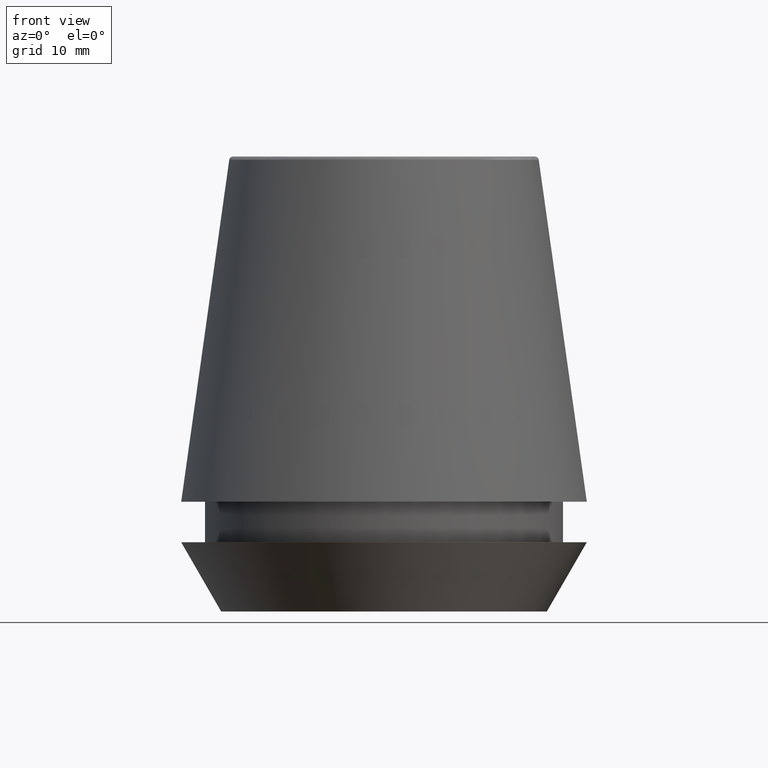
[diagram: clean part render]
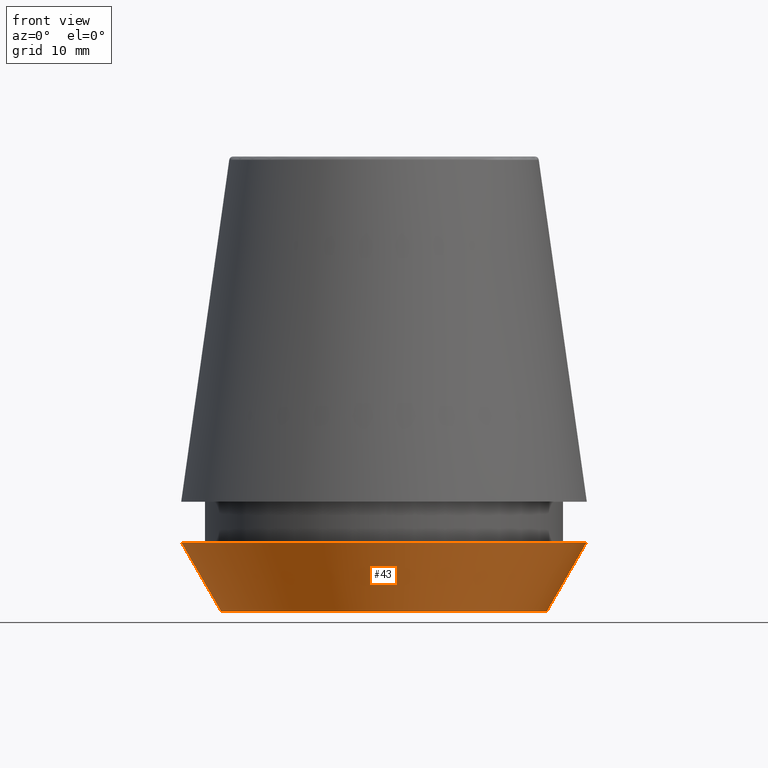
[diagram: same view with one face highlighted and labeled with its STEP entity id]
A machine part, front view. The second image highlights one B-rep face of the part: STEP entity #43.
In plain terms, the highlighted conical surface has half-angle 30 deg.
Its self-contained STEP definition (entity closure, byte-faithful):
#6 = CARTESIAN_POINT ( 'NONE',  ( 16.45854811567268100, 0.0000000000000000000, 0.0000000000000000000 ) ) ;
#10 = LINE ( 'NONE', #6, #353 ) ;
#43 = ADVANCED_FACE ( 'NONE', ( #178 ), #222, .T. ) ;
#56 = ORIENTED_EDGE ( 'NONE', *, *, #375, .F. ) ;
#57 = DIRECTION ( 'NONE',  ( -0.4999999999999941700, 6.123233995736694500E-017, 0.8660254037844420400 ) ) ;
#62 = DIRECTION ( 'NONE',  ( -0.0000000000000000000, -0.0000000000000000000, 1.000000000000000000 ) ) ;
#69 = CIRCLE ( 'NONE', #80, 16.45854811567268100 ) ;
#70 = DIRECTION ( 'NONE',  ( 1.000000000000000000, 0.0000000000000000000, 0.0000000000000000000 ) ) ;
#76 = AXIS2_PLACEMENT_3D ( 'NONE', #168, #329, #70 ) ;
#80 = AXIS2_PLACEMENT_3D ( 'NONE', #296, #136, #327 ) ;
#83 = CIRCLE ( 'NONE', #331, 20.50000000000000000 ) ;
#111 = EDGE_CURVE ( 'NONE', #140, #278, #69, .T. ) ;
#136 = DIRECTION ( 'NONE',  ( -0.0000000000000000000, -0.0000000000000000000, 1.000000000000000000 ) ) ;
#140 = VERTEX_POINT ( 'NONE', #147 ) ;
#147 = CARTESIAN_POINT ( 'NONE',  ( -16.45854811567268100, 2.263058382549599700E-015, 0.0000000000000000000 ) ) ;
#153 = CARTESIAN_POINT ( 'NONE',  ( 16.45854811567268100, 0.0000000000000000000, 0.0000000000000000000 ) ) ;
#157 = DIRECTION ( 'NONE',  ( 0.4999999999999941700, 0.0000000000000000000, 0.8660254037844420400 ) ) ;
#168 = CARTESIAN_POINT ( 'NONE',  ( 0.0000000000000000000, 0.0000000000000000000, 0.0000000000000000000 ) ) ;
#178 = FACE_OUTER_BOUND ( 'NONE', #376, .T. ) ;
#181 = CARTESIAN_POINT ( 'NONE',  ( -16.45854811567268100, 2.015590826847124800E-015, 0.0000000000000000000 ) ) ;
#188 = ORIENTED_EDGE ( 'NONE', *, *, #111, .T. ) ;
#191 = ORIENTED_EDGE ( 'NONE', *, *, #377, .T. ) ;
#214 = EDGE_CURVE ( 'NONE', #140, #271, #255, .T. ) ;
#222 = CONICAL_SURFACE ( 'NONE', #76, 16.45854811567268100, 0.5235987755982921500 ) ;
#237 = CARTESIAN_POINT ( 'NONE',  ( 0.0000000000000000000, 0.0000000000000000000, 7.000000000000006200 ) ) ;
#249 = CARTESIAN_POINT ( 'NONE',  ( 20.50000000000000000, 0.0000000000000000000, 7.000000000000006200 ) ) ;
#255 = LINE ( 'NONE', #181, #302 ) ;
#265 = DIRECTION ( 'NONE',  ( 1.000000000000000000, 0.0000000000000000000, 0.0000000000000000000 ) ) ;
#271 = VERTEX_POINT ( 'NONE', #287 ) ;
#278 = VERTEX_POINT ( 'NONE', #153 ) ;
#287 = CARTESIAN_POINT ( 'NONE',  ( -20.50000000000000000, 2.510525938252074100E-015, 7.000000000000006200 ) ) ;
#296 = CARTESIAN_POINT ( 'NONE',  ( 0.0000000000000000000, 0.0000000000000000000, 0.0000000000000000000 ) ) ;
#302 = VECTOR ( 'NONE', #57, 1000.000000000000000 ) ;
#304 = VERTEX_POINT ( 'NONE', #249 ) ;
#327 = DIRECTION ( 'NONE',  ( 1.000000000000000000, 0.0000000000000000000, 0.0000000000000000000 ) ) ;
#329 = DIRECTION ( 'NONE',  ( -0.0000000000000000000, -0.0000000000000000000, 1.000000000000000000 ) ) ;
#331 = AXIS2_PLACEMENT_3D ( 'NONE', #237, #62, #265 ) ;
#353 = VECTOR ( 'NONE', #157, 1000.000000000000000 ) ;
#375 = EDGE_CURVE ( 'NONE', #271, #304, #83, .T. ) ;
#376 = EDGE_LOOP ( 'NONE', ( #380, #188, #191, #56 ) ) ;
#377 = EDGE_CURVE ( 'NONE', #278, #304, #10, .T. ) ;
#380 = ORIENTED_EDGE ( 'NONE', *, *, #214, .F. ) ;